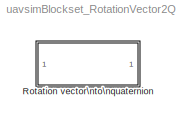
MODEL uavsimBlockset_RotationVector2Quaternion
KIND library
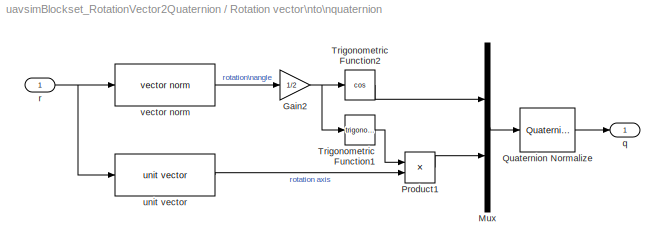
BLOCK [SubSystem] Rotation vector\nto\nquaternion
  FunctionWithSeparateData = off
  MaskHideContents = off
  MinAlgLoopOccurrences = off
  Opaque = off
  Ports = [1, 1]
  PropExecContextOutsideSubsystem = off
  RTWSystemCode = Auto
  RequestExecContextInheritance = off
  SID = 2185
BLOCK [Gain] Rotation vector\nto\nquaternion/Gain2
  Gain = 1/2
  OutDataTypeStr = Inherit: Inherit via internal rule
  ParamDataTypeStr = Inherit: Inherit via internal rule
  SID = 2198
  SaturateOnIntegerOverflow = off
BLOCK [Mux] Rotation vector\nto\nquaternion/Mux
  DisplayOption = bar
  Inputs = 2
  Ports = [2, 1]
  SID = 2199
BLOCK [Product] Rotation vector\nto\nquaternion/Product1
  InputSameDT = off
  OutDataTypeStr = Inherit: Inherit via internal rule
  Ports = [2, 1]
  SID = 2195
  SaturateOnIntegerOverflow = off
BLOCK [Reference] Rotation vector\nto\nquaternion/Quaternion Normalize  REF=aerolibutil/Quaternion\nNormalize
  Ports = [1, 1]
  SID = 2203
  SourceBlock = aerolibutil/Quaternion\nNormalize
  SourceType = Quaternion Normalize
BLOCK [Trigonometry] Rotation vector\nto\nquaternion/Trigonometric Function1
  Ports = [1, 1]
  SID = 2193
BLOCK [Trigonometry] Rotation vector\nto\nquaternion/Trigonometric Function2
  Operator = cos
  Ports = [1, 1]
  SID = 2197
BLOCK [Outport] Rotation vector\nto\nquaternion/q
  IconDisplay = Port number
  SID = 2192
BLOCK [Inport] Rotation vector\nto\nquaternion/r
  IconDisplay = Port number
  SID = 2186
BLOCK [Reference] Rotation vector\nto\nquaternion/unit vector  REF=uavsimblockset/unit vector  (lib defined in mdl_5d9185be9e12)
  Ports = [1, 1]
  SID = 2200
  SourceBlock = uavsimblockset/unit vector
  SourceType = SubSystem
BLOCK [Reference] Rotation vector\nto\nquaternion/vector norm  REF=uavsimblockset/vector norm  (lib defined in mdl_5d9185be9e12)
  Ports = [1, 1]
  SID = 2196
  SourceBlock = uavsimblockset/vector norm
  SourceType = SubSystem
NET Rotation vector\nto\nquaternion/Gain2:1 -> Rotation vector\nto\nquaternion/Trigonometric Function1:1, Rotation vector\nto\nquaternion/Trigonometric Function2:1
LINE Rotation vector\nto\nquaternion/Mux:1 -> Rotation vector\nto\nquaternion/Quaternion Normalize:1
LINE Rotation vector\nto\nquaternion/Product1:1 -> Rotation vector\nto\nquaternion/Mux:2
LINE Rotation vector\nto\nquaternion/Quaternion Normalize:1 -> Rotation vector\nto\nquaternion/q:1
LINE Rotation vector\nto\nquaternion/Trigonometric Function1:1 -> Rotation vector\nto\nquaternion/Product1:1
LINE Rotation vector\nto\nquaternion/Trigonometric Function2:1 -> Rotation vector\nto\nquaternion/Mux:1
NET Rotation vector\nto\nquaternion/r:1 -> Rotation vector\nto\nquaternion/unit vector:1, Rotation vector\nto\nquaternion/vector norm:1
LINE Rotation vector\nto\nquaternion/unit vector:1 -> Rotation vector\nto\nquaternion/Product1:2
LINE Rotation vector\nto\nquaternion/vector norm:1 -> Rotation vector\nto\nquaternion/Gain2:1
note: NET lines group one-source signal fan-out (src -> all destinations, sorted); 1:1 wires keep LINE
